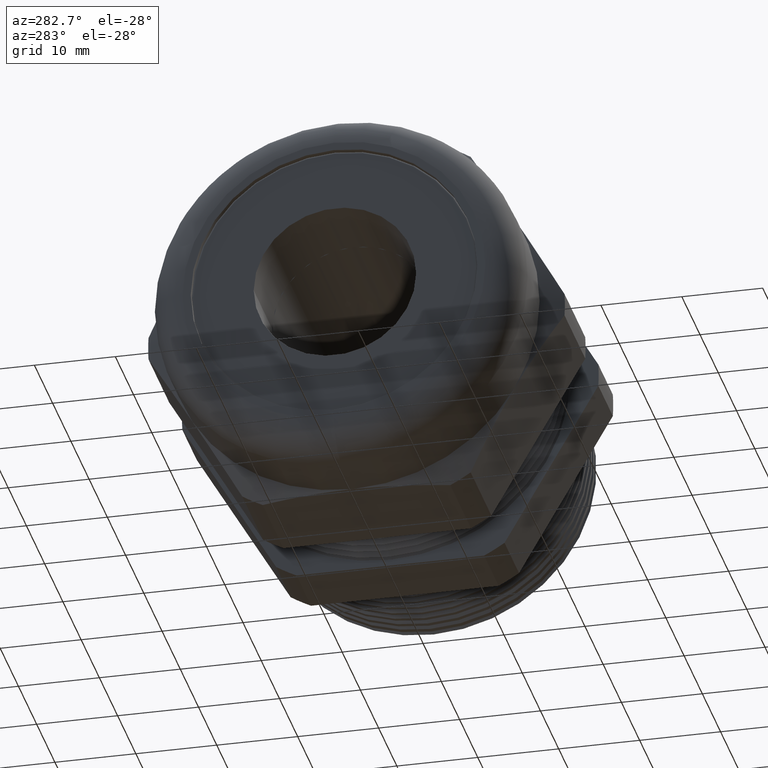
[diagram: clean part render]
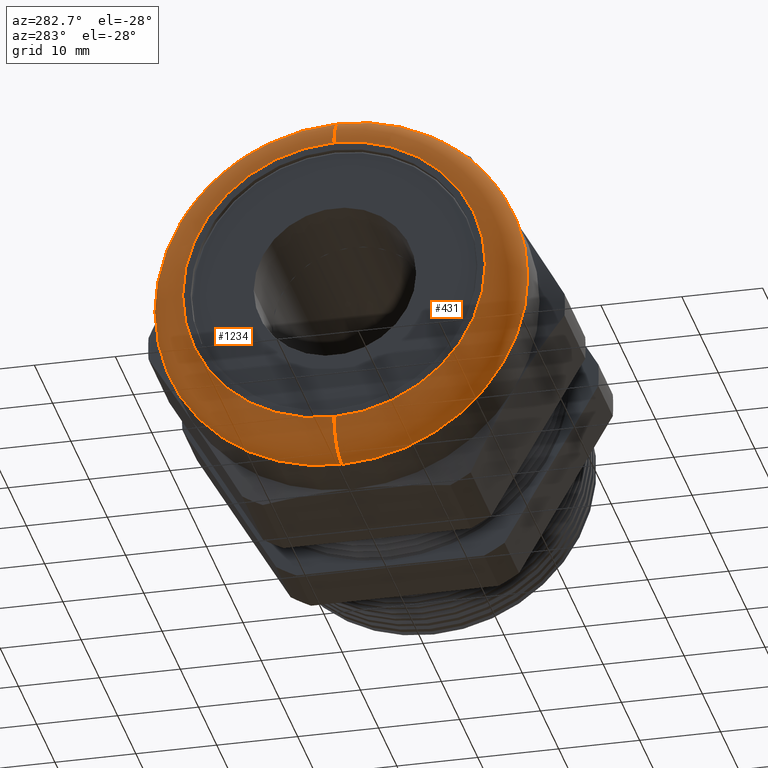
[diagram: same view with one multi-face feature highlighted, each face labeled with its STEP entity id]
A machine part, auxiliary view. The highlighted faces form ONE feature: a constant-radius fillet chain: 2 tangent blend faces with common blend radius 4.2824 mm. The faces share edges in the B-rep.
Their STEP definitions:
[1] entity #1234 (Torus):
#1225 = VERTEX_POINT ( 'NONE', #3535 ) ;
#1226 = VERTEX_POINT ( 'NONE', #3534 ) ;
#1227 = ORIENTED_EDGE ( 'NONE', *, *, #1228, .T. ) ;
#1228 = EDGE_CURVE ( 'NONE', #1225, #1229, #3533, .T. ) ;
#1229 = VERTEX_POINT ( 'NONE', #3528 ) ;
#1230 = ORIENTED_EDGE ( 'NONE', *, *, #1254, .F. ) ;
#1234 = ADVANCED_FACE ( 'NONE', ( #3516 ), #3515, .T. ) ;
#1235 = ORIENTED_EDGE ( 'NONE', *, *, #1236, .F. ) ;
#1236 = EDGE_CURVE ( 'NONE', #1225, #1226, #3511, .T. ) ;
#1242 = EDGE_LOOP ( 'NONE', ( #1235, #1227, #1230, #1256 ) ) ;
#1254 = EDGE_CURVE ( 'NONE', #1255, #1229, #3600, .T. ) ;
#1255 = VERTEX_POINT ( 'NONE', #3595 ) ;
#1256 = ORIENTED_EDGE ( 'NONE', *, *, #1301, .F. ) ;
#1301 = EDGE_CURVE ( 'NONE', #1226, #1255, #3679, .T. ) ;
#3507 = DIRECTION ( 'NONE',  ( 0.0000000000000000000, 0.0000000000000000000, -1.000000000000000000 ) ) ;
#3508 = DIRECTION ( 'NONE',  ( -1.000000000000000000, 0.0000000000000000000, 0.0000000000000000000 ) ) ;
#3509 = CARTESIAN_POINT ( 'NONE',  ( -1.530000000000000000, 0.0000000000000000000, 0.0000000000000000000 ) ) ;
#3510 = AXIS2_PLACEMENT_3D ( 'NONE', #3509, #3508, #3507 ) ;
#3511 = CIRCLE ( 'NONE', #3510, 0.7363999999999998300 ) ;
#3512 = DIRECTION ( 'NONE',  ( 0.0000000000000000000, 0.0000000000000000000, -1.000000000000000000 ) ) ;
#3513 = DIRECTION ( 'NONE',  ( 1.000000000000000000, 0.0000000000000000000, 0.0000000000000000000 ) ) ;
#3514 = AXIS2_PLACEMENT_3D ( 'NONE', #3522, #3513, #3512 ) ;
#3515 = TOROIDAL_SURFACE ( 'NONE', #3514, 0.7363999999999998300, 0.1686000000000001100 ) ;
#3516 = FACE_OUTER_BOUND ( 'NONE', #1242, .T. ) ;
#3522 = CARTESIAN_POINT ( 'NONE',  ( -1.361399999999999900, 0.0000000000000000000, 0.0000000000000000000 ) ) ;
#3528 = CARTESIAN_POINT ( 'NONE',  ( -1.361399999999999900, 0.0000000000000000000, 0.9049999999999999200 ) ) ;
#3529 = DIRECTION ( 'NONE',  ( 0.0000000000000000000, 1.224646799147353900E-016, 1.000000000000000000 ) ) ;
#3530 = DIRECTION ( 'NONE',  ( 0.0000000000000000000, 1.000000000000000000, -1.224646799147353200E-016 ) ) ;
#3531 = CARTESIAN_POINT ( 'NONE',  ( -1.361399999999999900, 9.018299028921107300E-017, 0.7363999999999998300 ) ) ;
#3532 = AXIS2_PLACEMENT_3D ( 'NONE', #3531, #3530, #3529 ) ;
#3533 = CIRCLE ( 'NONE', #3532, 0.1686000000000000800 ) ;
#3534 = CARTESIAN_POINT ( 'NONE',  ( -1.530000000000000000, 0.0000000000000000000, -0.7363999999999998300 ) ) ;
#3535 = CARTESIAN_POINT ( 'NONE',  ( -1.530000000000000000, 1.005067628060232600E-016, 0.7363999999999998300 ) ) ;
#3595 = CARTESIAN_POINT ( 'NONE',  ( -1.361399999999999900, 1.108305353228354500E-016, -0.9049999999999999200 ) ) ;
#3596 = DIRECTION ( 'NONE',  ( 0.0000000000000000000, 0.0000000000000000000, -1.000000000000000000 ) ) ;
#3597 = DIRECTION ( 'NONE',  ( 1.000000000000000000, 0.0000000000000000000, 0.0000000000000000000 ) ) ;
#3598 = CARTESIAN_POINT ( 'NONE',  ( -1.361399999999999900, 0.0000000000000000000, 0.0000000000000000000 ) ) ;
#3599 = AXIS2_PLACEMENT_3D ( 'NONE', #3598, #3597, #3596 ) ;
#3600 = CIRCLE ( 'NONE', #3599, 0.9049999999999999200 ) ;
#3675 = DIRECTION ( 'NONE',  ( 0.0000000000000000000, 0.0000000000000000000, -1.000000000000000000 ) ) ;
#3676 = DIRECTION ( 'NONE',  ( 0.0000000000000000000, -1.000000000000000000, 0.0000000000000000000 ) ) ;
#3677 = CARTESIAN_POINT ( 'NONE',  ( -1.361399999999999900, 0.0000000000000000000, -0.7363999999999998300 ) ) ;
#3678 = AXIS2_PLACEMENT_3D ( 'NONE', #3677, #3676, #3675 ) ;
#3679 = CIRCLE ( 'NONE', #3678, 0.1686000000000000800 ) ;
[2] entity #431 (Torus):
#409 = EDGE_CURVE ( 'NONE', #1229, #1255, #2106, .T. ) ;
#431 = ADVANCED_FACE ( 'NONE', ( #2137 ), #2136, .T. ) ;
#432 = EDGE_LOOP ( 'NONE', ( #433, #434, #435, #436 ) ) ;
#433 = ORIENTED_EDGE ( 'NONE', *, *, #1228, .F. ) ;
#434 = ORIENTED_EDGE ( 'NONE', *, *, #4065, .F. ) ;
#435 = ORIENTED_EDGE ( 'NONE', *, *, #1301, .T. ) ;
#436 = ORIENTED_EDGE ( 'NONE', *, *, #409, .F. ) ;
#1225 = VERTEX_POINT ( 'NONE', #3535 ) ;
#1226 = VERTEX_POINT ( 'NONE', #3534 ) ;
#1228 = EDGE_CURVE ( 'NONE', #1225, #1229, #3533, .T. ) ;
#1229 = VERTEX_POINT ( 'NONE', #3528 ) ;
#1255 = VERTEX_POINT ( 'NONE', #3595 ) ;
#1301 = EDGE_CURVE ( 'NONE', #1226, #1255, #3679, .T. ) ;
#2103 = DIRECTION ( 'NONE',  ( 1.000000000000000000, 0.0000000000000000000, 0.0000000000000000000 ) ) ;
#2104 = CARTESIAN_POINT ( 'NONE',  ( -1.361399999999999900, 0.0000000000000000000, 0.0000000000000000000 ) ) ;
#2105 = AXIS2_PLACEMENT_3D ( 'NONE', #2104, #2103, #2166 ) ;
#2106 = CIRCLE ( 'NONE', #2105, 0.9049999999999999200 ) ;
#2136 = TOROIDAL_SURFACE ( 'NONE', #2202, 0.7363999999999998300, 0.1686000000000001100 ) ;
#2137 = FACE_OUTER_BOUND ( 'NONE', #432, .T. ) ;
#2166 = DIRECTION ( 'NONE',  ( 0.0000000000000000000, 0.0000000000000000000, -1.000000000000000000 ) ) ;
#2199 = DIRECTION ( 'NONE',  ( 0.0000000000000000000, 0.0000000000000000000, -1.000000000000000000 ) ) ;
#2200 = DIRECTION ( 'NONE',  ( 1.000000000000000000, 0.0000000000000000000, 0.0000000000000000000 ) ) ;
#2201 = CARTESIAN_POINT ( 'NONE',  ( -1.361399999999999900, 0.0000000000000000000, 0.0000000000000000000 ) ) ;
#2202 = AXIS2_PLACEMENT_3D ( 'NONE', #2201, #2200, #2199 ) ;
#3528 = CARTESIAN_POINT ( 'NONE',  ( -1.361399999999999900, 0.0000000000000000000, 0.9049999999999999200 ) ) ;
#3529 = DIRECTION ( 'NONE',  ( 0.0000000000000000000, 1.224646799147353900E-016, 1.000000000000000000 ) ) ;
#3530 = DIRECTION ( 'NONE',  ( 0.0000000000000000000, 1.000000000000000000, -1.224646799147353200E-016 ) ) ;
#3531 = CARTESIAN_POINT ( 'NONE',  ( -1.361399999999999900, 9.018299028921107300E-017, 0.7363999999999998300 ) ) ;
#3532 = AXIS2_PLACEMENT_3D ( 'NONE', #3531, #3530, #3529 ) ;
#3533 = CIRCLE ( 'NONE', #3532, 0.1686000000000000800 ) ;
#3534 = CARTESIAN_POINT ( 'NONE',  ( -1.530000000000000000, 0.0000000000000000000, -0.7363999999999998300 ) ) ;
#3535 = CARTESIAN_POINT ( 'NONE',  ( -1.530000000000000000, 1.005067628060232600E-016, 0.7363999999999998300 ) ) ;
#3595 = CARTESIAN_POINT ( 'NONE',  ( -1.361399999999999900, 1.108305353228354500E-016, -0.9049999999999999200 ) ) ;
#3675 = DIRECTION ( 'NONE',  ( 0.0000000000000000000, 0.0000000000000000000, -1.000000000000000000 ) ) ;
#3676 = DIRECTION ( 'NONE',  ( 0.0000000000000000000, -1.000000000000000000, 0.0000000000000000000 ) ) ;
#3677 = CARTESIAN_POINT ( 'NONE',  ( -1.361399999999999900, 0.0000000000000000000, -0.7363999999999998300 ) ) ;
#3678 = AXIS2_PLACEMENT_3D ( 'NONE', #3677, #3676, #3675 ) ;
#3679 = CIRCLE ( 'NONE', #3678, 0.1686000000000000800 ) ;
#3840 = DIRECTION ( 'NONE',  ( 0.0000000000000000000, 0.0000000000000000000, -1.000000000000000000 ) ) ;
#3841 = DIRECTION ( 'NONE',  ( -1.000000000000000000, 0.0000000000000000000, 0.0000000000000000000 ) ) ;
#3842 = CARTESIAN_POINT ( 'NONE',  ( -1.530000000000000000, 0.0000000000000000000, 0.0000000000000000000 ) ) ;
#3843 = AXIS2_PLACEMENT_3D ( 'NONE', #3842, #3841, #3840 ) ;
#3844 = CIRCLE ( 'NONE', #3843, 0.7363999999999998300 ) ;
#4065 = EDGE_CURVE ( 'NONE', #1226, #1225, #3844, .T. ) ;